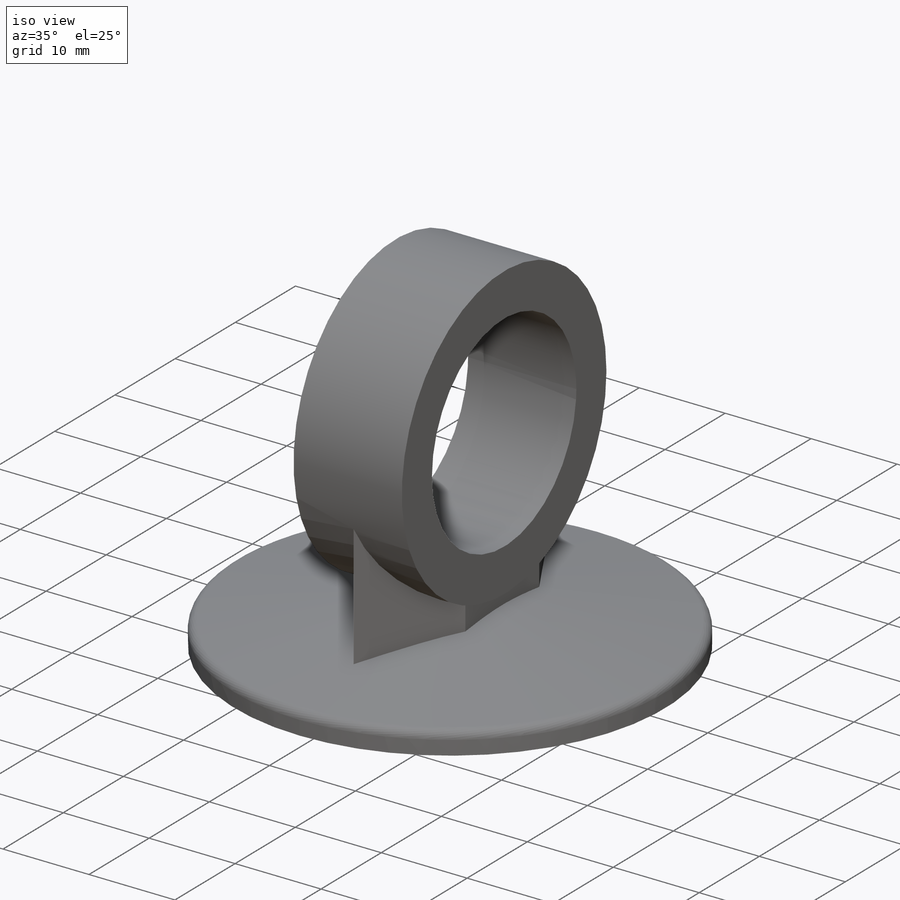
[diagram: iso view]
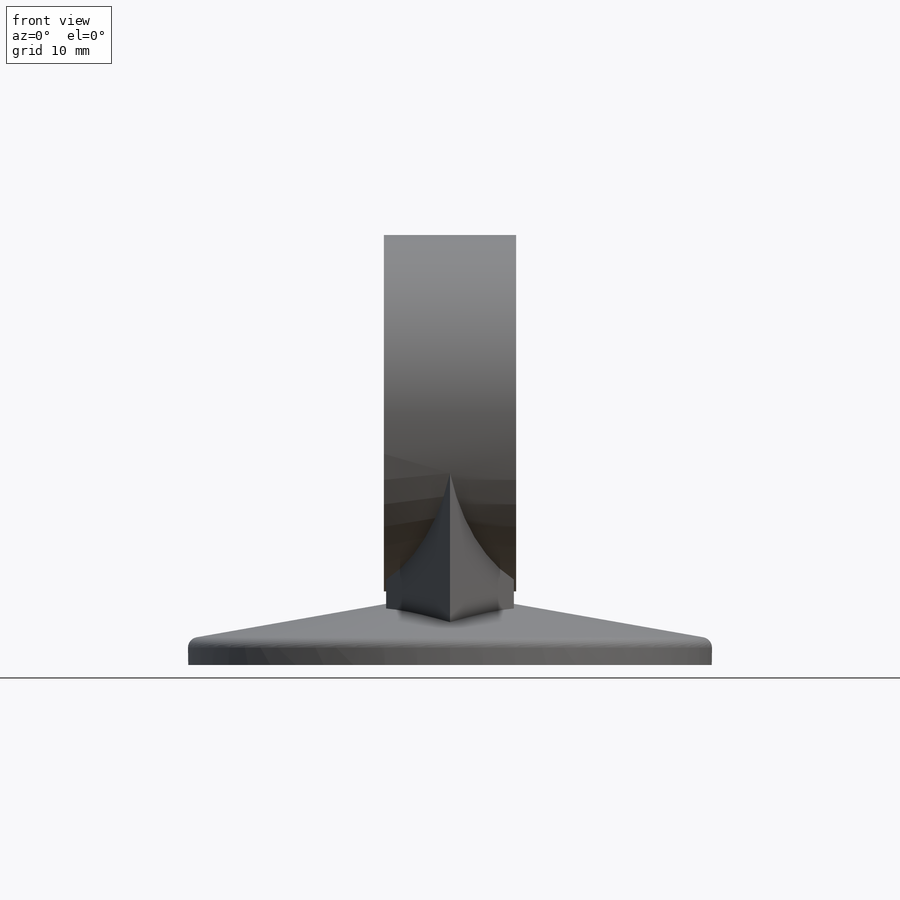
[diagram: front view]
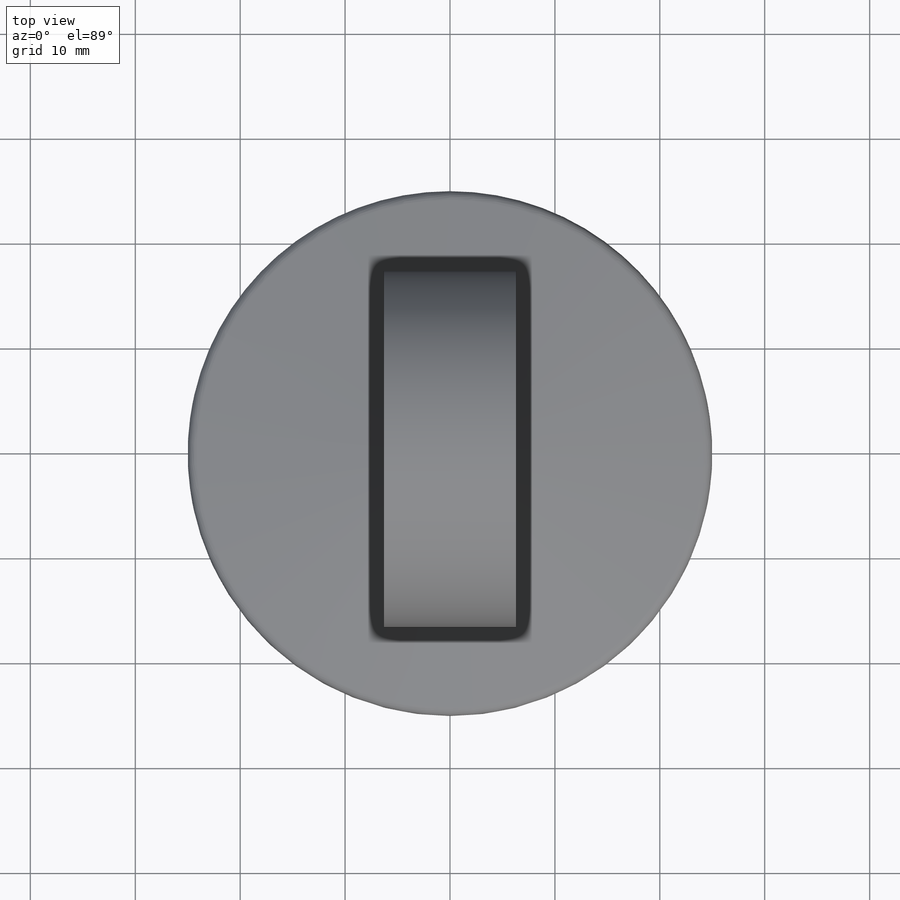
[diagram: top view]
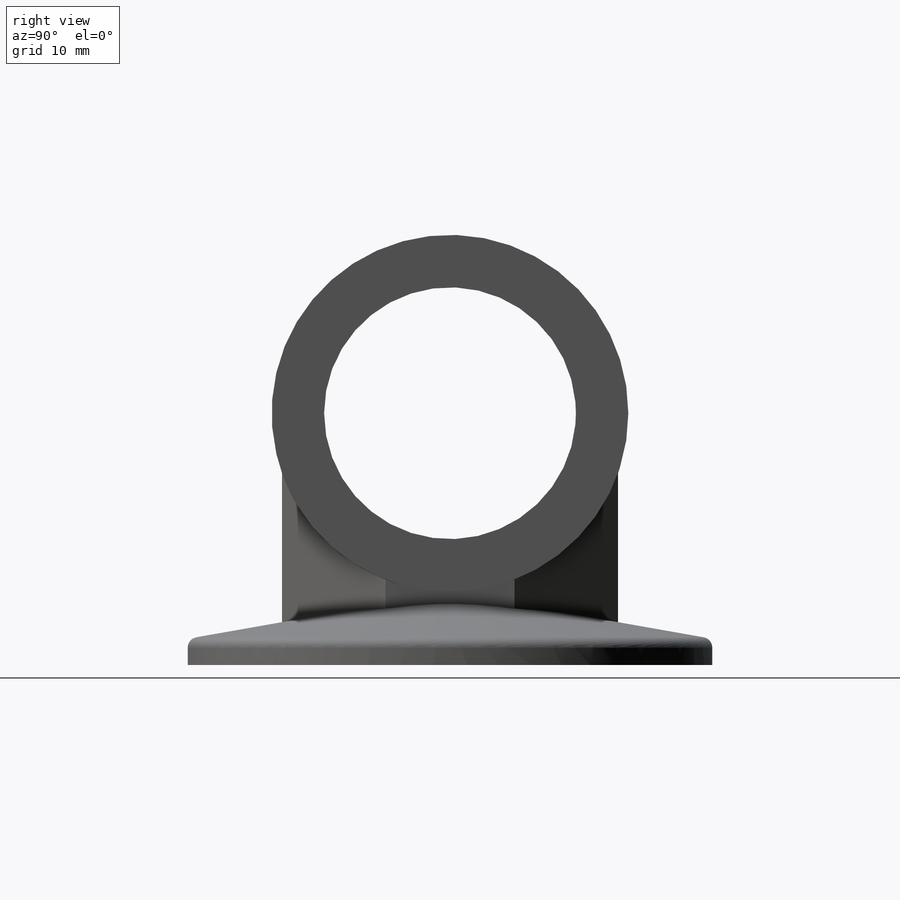
[diagram: right view]
SOLIDWORKS PART (.sldprt)
format: sldprt  version: not decoded by parser v0  size: 226,816 bytes
history: native  units: mm
features: sketch x6, extrude x4, material x1, fillet x1, plane x1, cut_extrude x1 (+13 scaffold rows collapsed)
feature tree (27):
  scaffold x13  (default folders/planes/origin — collapsed)
  material  "Material <sin especificar>"
  sketch  "Sketch1"  dims[D1=~19.570924mm]
  extrude  "Boss-Extrude1"  Depth=2.5mm
  sketch  "Sketch2"
  extrude  "Boss-Extrude3"  Depth=5mm
  fillet  "Fillet1"  Radius=1mm
  plane  "Plane1"  Offset=4mm
  sketch  "Sketch3"  dims[c1.D1=~9.367657mm c2.D1=30.0deg]
  sketch  "Sketch4"  dims[c1.D1=~7.246641mm c2.D1=30.0deg]
  extrude  "Boss-Extrude9"  Depth=15mm
  sketch  "Sketch5"  dims[D1=10.0mm]
  extrude  "Boss-Extrude11"  Depth=6.3mm
  sketch  "Sketch6"  dims[D1=15.0mm]
  cut_extrude  "Cut-Extrude3"  Depth=6.3mm
decode coverage: 11 of 12 modeling features carry decoded parameters
note: ~ marks probable driven/reference dimensions
note: suppression state not decoded; provenance and decode notes live in map.json
